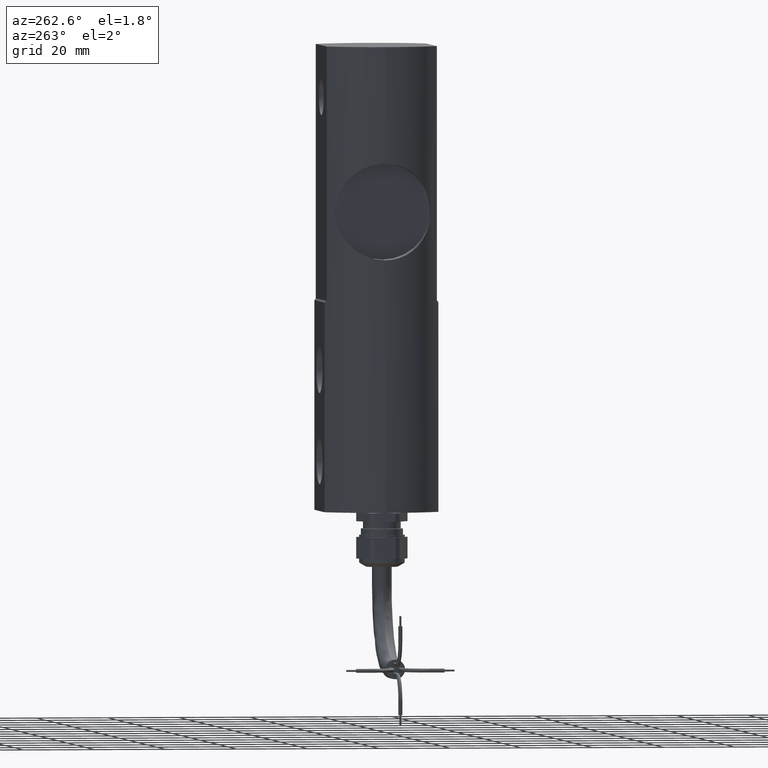
[diagram: clean part render]
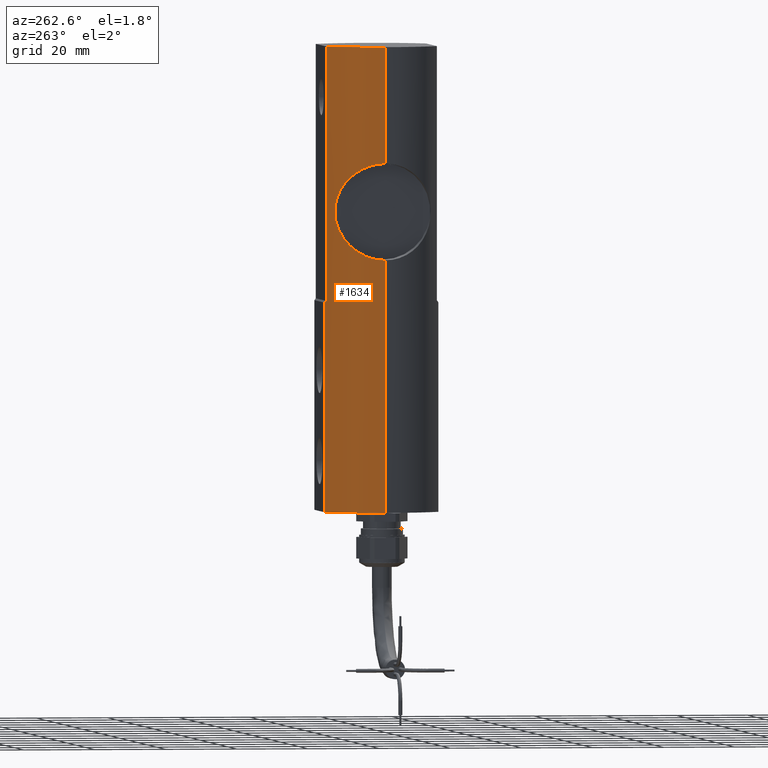
[diagram: same view with one face highlighted and labeled with its STEP entity id]
A machine part, auxiliary view. The second image highlights one B-rep face of the part: STEP entity #1634.
In plain terms, the highlighted cylindrical surface (partial cylindrical patch) has radius 19.5 mm, axis along (-0, -0, -1).
Its self-contained STEP definition (entity closure, byte-faithful):
#100 = CARTESIAN_POINT ( 'NONE',  ( -0.7474542367899241757, 0.1760816591152862820, 1.249831040023417605 ) ) ;
#145 = CARTESIAN_POINT ( 'NONE',  ( -0.6026253116535781329, 0.4759556351202441360, 0.9870566017272938142 ) ) ;
#179 = EDGE_CURVE ( 'NONE', #1365, #2186, #2805, .T. ) ;
#182 = CARTESIAN_POINT ( 'NONE',  ( -0.6819379750867955448, 0.3536740754628698857, 1.146187442405130374 ) ) ;
#267 = VERTEX_POINT ( 'NONE', #4167 ) ;
#278 = DIRECTION ( 'NONE',  ( -0.000000000000000000, -0.000000000000000000, -1.000000000000000000 ) ) ;
#294 = CARTESIAN_POINT ( 'NONE',  ( -0.4658330537873713872, 0.6102362204724409711, 2.559055118110236560 ) ) ;
#403 = CARTESIAN_POINT ( 'NONE',  ( -0.4388483623938572165, 0.6299212598425196763, -0.2559055118110238336 ) ) ;
#457 = DIRECTION ( 'NONE',  ( -0.000000000000000000, -0.000000000000000000, -1.000000000000000000 ) ) ;
#559 = CARTESIAN_POINT ( 'NONE',  ( -0.5609490423466471087, 0.5241652118291716400, 0.6582489021419782871 ) ) ;
#595 = CARTESIAN_POINT ( 'NONE',  ( -0.7474027479479482539, 0.1762892571581320122, 0.2463087781072653693 ) ) ;
#692 = VERTEX_POINT ( 'NONE', #6090 ) ;
#794 = CARTESIAN_POINT ( 'NONE',  ( -0.7342790862889849723, 0.2247247910687694139, 1.229997857143553031 ) ) ;
#832 = CARTESIAN_POINT ( 'NONE',  ( -0.6151622514215834281, 0.4598768441456292932, 1.016595881560198311 ) ) ;
#993 = VECTOR ( 'NONE', #5206, 39.37007874015748143 ) ;
#1007 = ORIENTED_EDGE ( 'NONE', *, *, #1934, .T. ) ;
#1168 = CARTESIAN_POINT ( 'NONE',  ( -0.5709800459994637256, 0.5132910873418131681, 0.6055239573869877212 ) ) ;
#1207 = CARTESIAN_POINT ( 'NONE',  ( -0.5583727248379918295, 0.5268918568932832169, 0.8201426242514274767 ) ) ;
#1241 = CARTESIAN_POINT ( 'NONE',  ( -0.7295535722579121751, 0.2413734632919570522, 0.2732107368802534908 ) ) ;
#1288 = CARTESIAN_POINT ( 'NONE',  ( -0.7677165354330708347, -3.882189494197892854E-30, 1.279527559055118280 ) ) ;
#1325 = CARTESIAN_POINT ( 'NONE',  ( -0.7651223527391926016, 0.07226026299486677795, 1.275799526432576103 ) ) ;
#1365 = VERTEX_POINT ( 'NONE', #7526 ) ;
#1482 = DIRECTION ( 'NONE',  ( -1.000000000000000000, 0.000000000000000000, 0.000000000000000000 ) ) ;
#1578 = ORIENTED_EDGE ( 'NONE', *, *, #2958, .T. ) ;
#1634 = ADVANCED_FACE ( 'NONE', ( #3767 ), #5009, .T. ) ;
#1761 = CARTESIAN_POINT ( 'NONE',  ( -0.7645025122938544637, 0.07246875061989575817, 0.2211868484316887040 ) ) ;
#1862 = VERTEX_POINT ( 'NONE', #4033 ) ;
#1934 = EDGE_CURVE ( 'NONE', #3627, #2186, #2587, .T. ) ;
#2186 = VERTEX_POINT ( 'NONE', #3630 ) ;
#2258 = DIRECTION ( 'NONE',  ( -0.000000000000000000, -0.000000000000000000, -1.000000000000000000 ) ) ;
#2330 = CARTESIAN_POINT ( 'NONE',  ( -0.7188157796358256579, 0.2713251330478477774, 0.2897529932941027009 ) ) ;
#2362 = EDGE_CURVE ( 'NONE', #3627, #267, #4748, .T. ) ;
#2568 = CARTESIAN_POINT ( 'NONE',  ( -0.5808003018717370347, 0.5021040964417751162, 0.9232151404301734976 ) ) ;
#2587 = B_SPLINE_CURVE_WITH_KNOTS ( 'NONE', 3,
 ( #5409, #5975, #2922, #1761, #2966, #7883, #6650, #595, #7958, #1241, #2330, #3086, #4810, #4888, #7270, #4772, #6128, #4281, #6730, #4196, #5487, #5532, #1168, #559, #3006, #5449, #7919, #7313, #6692, #1207, #7425, #3230, #4317, #2568, #5036, #145, #832, #3193, #3872, #182, #3795, #6846, #4398, #3157, #794, #4360, #100, #4999, #6922, #1325, #4468, #1288 ),
 .UNSPECIFIED., .F., .F.,
 ( 4, 2, 2, 2, 2, 2, 2, 2, 2, 2, 2, 2, 2, 2, 2, 2, 2, 2, 2, 2, 2, 2, 2, 2, 2, 4 ),
 ( 0.04411971918378829183, 0.04550013832955245724, 0.04688055747531662265, 0.04826097662108079500, 0.04964139576684496041, 0.05240223405837329124, 0.05378265320413745665, 0.05516307234990162900, 0.05792391064142995288, 0.05930432978719411136, 0.06068474893295826983, 0.06344558722448659371, 0.06482600637025075219, 0.06620642551601491066, 0.06758684466177908301, 0.06896726380754324148, 0.07034768295330739996, 0.07172810209907157231, 0.07448894039059988925, 0.07724977868212820620, 0.08001061697365652314, 0.08139103611942068162, 0.08277145526518484009, 0.08415187441094901244, 0.08553229355671317091, 0.08829313184824148786 ),
 .UNSPECIFIED. ) ;
#2805 = LINE ( 'NONE', #5250, #6942 ) ;
#2922 = CARTESIAN_POINT ( 'NONE',  ( -0.7670670489923885338, 0.03638617141349343581, 0.2174723107838860414 ) ) ;
#2958 = EDGE_CURVE ( 'NONE', #692, #267, #3587, .T. ) ;
#2966 = CARTESIAN_POINT ( 'NONE',  ( -0.7626010044789180986, 0.09022278119966060939, 0.2239450240648977741 ) ) ;
#2989 = CARTESIAN_POINT ( 'NONE',  ( 0.000000000000000000, 0.000000000000000000, 2.559055118110236560 ) ) ;
#3006 = CARTESIAN_POINT ( 'NONE',  ( -0.5583625248164114652, 0.5269025763544674668, 0.6760342960925144196 ) ) ;
#3056 = ORIENTED_EDGE ( 'NONE', *, *, #7008, .F. ) ;
#3086 = CARTESIAN_POINT ( 'NONE',  ( -0.7010306780424602202, 0.3133302742244505890, 0.3183812703358199769 ) ) ;
#3157 = CARTESIAN_POINT ( 'NONE',  ( -0.7293154219775002112, 0.2403018398500262887, 1.222415944224640949 ) ) ;
#3193 = CARTESIAN_POINT ( 'NONE',  ( -0.6414364229815491258, 0.4224578353256698282, 1.072288983734109413 ) ) ;
#3230 = CARTESIAN_POINT ( 'NONE',  ( -0.5675495826172625158, 0.5170104475355186135, 0.8725412567512772499 ) ) ;
#3241 = DIRECTION ( 'NONE',  ( -0.000000000000000000, -0.000000000000000000, -1.000000000000000000 ) ) ;
#3336 = CARTESIAN_POINT ( 'NONE',  ( -0.4388483623938572165, 0.6299212598425196763, -0.2559055118110238336 ) ) ;
#3517 = ORIENTED_EDGE ( 'NONE', *, *, #3709, .T. ) ;
#3587 = CIRCLE ( 'NONE', #7704, 0.7677165354330708347 ) ;
#3627 = VERTEX_POINT ( 'NONE', #5739 ) ;
#3630 = CARTESIAN_POINT ( 'NONE',  ( -0.7677165354330708347, -3.882189494197892854E-30, 1.279527559055118280 ) ) ;
#3701 = LINE ( 'NONE', #7490, #7850 ) ;
#3709 = EDGE_CURVE ( 'NONE', #6715, #692, #7068, .T. ) ;
#3767 = FACE_OUTER_BOUND ( 'NONE', #7654, .T. ) ;
#3795 = CARTESIAN_POINT ( 'NONE',  ( -0.6948852227336368426, 0.3278303025350704503, 1.167787143679824835 ) ) ;
#3812 = CIRCLE ( 'NONE', #5860, 0.7677165354330708347 ) ;
#3872 = CARTESIAN_POINT ( 'NONE',  ( -0.6552706536657852965, 0.4009303230792221617, 1.098557365718442869 ) ) ;
#4033 = CARTESIAN_POINT ( 'NONE',  ( -0.4658330537873714983, 0.6102362204724409711, -0.2362204724409451007 ) ) ;
#4167 = CARTESIAN_POINT ( 'NONE',  ( -0.7677165354330708347, 0.000000000000000000, -2.559055118110236560 ) ) ;
#4196 = CARTESIAN_POINT ( 'NONE',  ( -0.6030242512223238371, 0.4752431739239291741, 0.5094435117018899506 ) ) ;
#4281 = CARTESIAN_POINT ( 'NONE',  ( -0.6219950743077151678, 0.4501575172519047263, 0.4649634588399155222 ) ) ;
#4317 = CARTESIAN_POINT ( 'NONE',  ( -0.5715638791883509429, 0.5125936463955403921, 0.8896139335059962683 ) ) ;
#4360 = CARTESIAN_POINT ( 'NONE',  ( -0.7433482668463602394, 0.1926145437364508162, 1.243705221890111456 ) ) ;
#4398 = CARTESIAN_POINT ( 'NONE',  ( -0.7186420721445103688, 0.2705541186405617804, 1.205837183860303030 ) ) ;
#4468 = CARTESIAN_POINT ( 'NONE',  ( -0.7677165354330706126, 0.03659038365191707304, 1.279527559055117614 ) ) ;
#4545 = DIRECTION ( 'NONE',  ( -1.000000000000000000, 8.881784197001252323E-16, 0.000000000000000000 ) ) ;
#4609 = CARTESIAN_POINT ( 'NONE',  ( -0.4479860356699710278, 0.6235553007791359015, -0.2495395527476397812 ) ) ;
#4748 = LINE ( 'NONE', #5992, #6647 ) ;
#4772 = CARTESIAN_POINT ( 'NONE',  ( -0.6552710235509143777, 0.4009318983771392175, 0.3975037766552428353 ) ) ;
#4810 = CARTESIAN_POINT ( 'NONE',  ( -0.6948204369565086358, 0.3268401557407077940, 0.3285664517319966671 ) ) ;
#4888 = CARTESIAN_POINT ( 'NONE',  ( -0.6819515237160421739, 0.3529051520145496945, 0.3502459200276089590 ) ) ;
#4999 = CARTESIAN_POINT ( 'NONE',  ( -0.7546764533976744183, 0.1419719601157476141, 1.260526857541098833 ) ) ;
#5009 = CYLINDRICAL_SURFACE ( 'NONE', #7562, 0.7677165354330708347 ) ;
#5036 = CARTESIAN_POINT ( 'NONE',  ( -0.5859999477580475347, 0.4960527477221104431, 0.9396415483686534342 ) ) ;
#5087 = DIRECTION ( 'NONE',  ( -0.000000000000000000, -0.000000000000000000, -1.000000000000000000 ) ) ;
#5206 = DIRECTION ( 'NONE',  ( -0.000000000000000000, -0.000000000000000000, -1.000000000000000000 ) ) ;
#5207 = CARTESIAN_POINT ( 'NONE',  ( -0.4658330537873714983, 0.6102362204724409711, -0.2362204724409451007 ) ) ;
#5250 = CARTESIAN_POINT ( 'NONE',  ( -0.7677165354330708347, 0.000000000000000000, 2.559055118110236560 ) ) ;
#5409 = CARTESIAN_POINT ( 'NONE',  ( -0.7677165354330708347, 6.508949520962878422E-17, 0.2165354330708659514 ) ) ;
#5449 = CARTESIAN_POINT ( 'NONE',  ( -0.5548901086070139321, 0.5305581979938007731, 0.7117283238305942561 ) ) ;
#5487 = CARTESIAN_POINT ( 'NONE',  ( -0.5970465176615444847, 0.4827004721346722649, 0.5249096535285556753 ) ) ;
#5532 = CARTESIAN_POINT ( 'NONE',  ( -0.5804170757165788563, 0.5027993059738576909, 0.5723582976410170886 ) ) ;
#5739 = CARTESIAN_POINT ( 'NONE',  ( -0.7677165354330708347, 6.508949520962878422E-17, 0.2165354330708659514 ) ) ;
#5804 = CARTESIAN_POINT ( 'NONE',  ( 0.000000000000000000, 0.000000000000000000, -2.559055118110236560 ) ) ;
#5860 = AXIS2_PLACEMENT_3D ( 'NONE', #2989, #457, #7334 ) ;
#5975 = CARTESIAN_POINT ( 'NONE',  ( -0.7677165354330708347, 0.01807835851423498022, 0.2165354330708660346 ) ) ;
#5992 = CARTESIAN_POINT ( 'NONE',  ( -0.7677165354330708347, 0.000000000000000000, 2.559055118110236560 ) ) ;
#6090 = CARTESIAN_POINT ( 'NONE',  ( -0.4388483623938572165, 0.6299212598425196763, -2.559055118110236560 ) ) ;
#6113 = VERTEX_POINT ( 'NONE', #294 ) ;
#6128 = CARTESIAN_POINT ( 'NONE',  ( -0.6417083317357650252, 0.4220462437395500199, 0.4232392711562963927 ) ) ;
#6185 = ORIENTED_EDGE ( 'NONE', *, *, #6965, .T. ) ;
#6291 = CARTESIAN_POINT ( 'NONE',  ( 0.000000000000000000, 0.000000000000000000, 2.559055118110236560 ) ) ;
#6469 = ORIENTED_EDGE ( 'NONE', *, *, #6859, .T. ) ;
#6647 = VECTOR ( 'NONE', #2258, 39.37007874015748143 ) ;
#6650 = CARTESIAN_POINT ( 'NONE',  ( -0.7545937530366164658, 0.1423974638384547797, 0.2356580480832752289 ) ) ;
#6692 = CARTESIAN_POINT ( 'NONE',  ( -0.5548745375011215897, 0.5305745718901084818, 0.7841655151127594481 ) ) ;
#6715 = VERTEX_POINT ( 'NONE', #3336 ) ;
#6730 = CARTESIAN_POINT ( 'NONE',  ( -0.6155310653808891974, 0.4589290026513921927, 0.4793970396576717197 ) ) ;
#6846 = CARTESIAN_POINT ( 'NONE',  ( -0.7129142715700829136, 0.2852705653991822188, 1.196811654927601554 ) ) ;
#6859 = EDGE_CURVE ( 'NONE', #1365, #6113, #3812, .T. ) ;
#6922 = CARTESIAN_POINT ( 'NONE',  ( -0.7577316594638100478, 0.1246702907534527338, 1.265006860280299072 ) ) ;
#6942 = VECTOR ( 'NONE', #278, 39.37007874015748143 ) ;
#6965 = EDGE_CURVE ( 'NONE', #6113, #1862, #3701, .T. ) ;
#6998 = DIRECTION ( 'NONE',  ( 0.000000000000000000, 0.000000000000000000, 1.000000000000000000 ) ) ;
#7008 = EDGE_CURVE ( 'NONE', #6715, #1862, #7417, .T. ) ;
#7022 = CARTESIAN_POINT ( 'NONE',  ( -0.4388483623938572720, 0.6299212598425196763, 2.559055118110236560 ) ) ;
#7068 = LINE ( 'NONE', #7022, #993 ) ;
#7069 = CARTESIAN_POINT ( 'NONE',  ( -0.4569809328011424920, 0.6169936209891095924, -0.2429778729576136109 ) ) ;
#7270 = CARTESIAN_POINT ( 'NONE',  ( -0.6752938146202189795, 0.3654468475430204810, 0.3617431741383712596 ) ) ;
#7313 = CARTESIAN_POINT ( 'NONE',  ( -0.5539772534577110941, 0.5315052978052964283, 0.7658298464549734286 ) ) ;
#7318 = ORIENTED_EDGE ( 'NONE', *, *, #179, .F. ) ;
#7334 = DIRECTION ( 'NONE',  ( -1.000000000000000000, 0.000000000000000000, 0.000000000000000000 ) ) ;
#7417 = B_SPLINE_CURVE_WITH_KNOTS ( 'NONE', 3,
 ( #403, #4609, #7069, #5207 ),
 .UNSPECIFIED., .F., .F.,
 ( 4, 4 ),
 ( 0.000000000000000000, 1.000000000000000000 ),
 .UNSPECIFIED. ) ;
#7425 = CARTESIAN_POINT ( 'NONE',  ( -0.5609538644617001468, 0.5241594161468345892, 0.8378056005260310357 ) ) ;
#7490 = CARTESIAN_POINT ( 'NONE',  ( -0.4658330537873713872, 0.6102362204724409711, 2.559055118110236560 ) ) ;
#7526 = CARTESIAN_POINT ( 'NONE',  ( -0.7677165354330708347, 0.000000000000000000, 2.559055118110236560 ) ) ;
#7562 = AXIS2_PLACEMENT_3D ( 'NONE', #6291, #3241, #1482 ) ;
#7588 = ORIENTED_EDGE ( 'NONE', *, *, #2362, .F. ) ;
#7654 = EDGE_LOOP ( 'NONE', ( #7318, #6469, #6185, #3056, #3517, #1578, #7588, #1007 ) ) ;
#7704 = AXIS2_PLACEMENT_3D ( 'NONE', #5804, #6998, #4545 ) ;
#7850 = VECTOR ( 'NONE', #5087, 39.37007874015748143 ) ;
#7883 = CARTESIAN_POINT ( 'NONE',  ( -0.7576467588882319637, 0.1251871839519276552, 0.2311805026877279678 ) ) ;
#7919 = CARTESIAN_POINT ( 'NONE',  ( -0.5539951084625679423, 0.5314866872680760190, 0.7296858118680906724 ) ) ;
#7958 = CARTESIAN_POINT ( 'NONE',  ( -0.7432355908335124273, 0.1930537658149575897, 0.2525264327489351590 ) ) ;